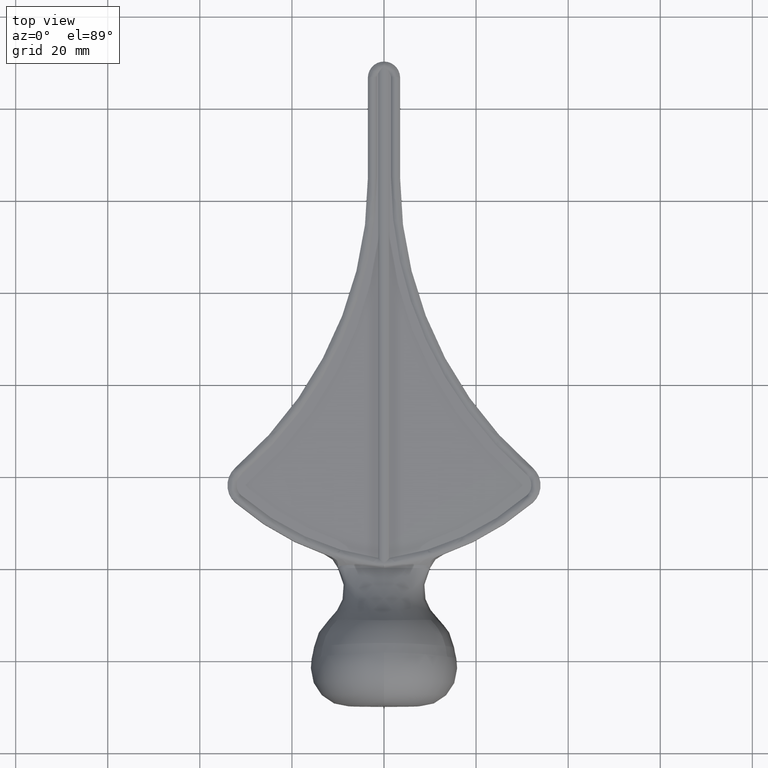
[diagram: clean part render]
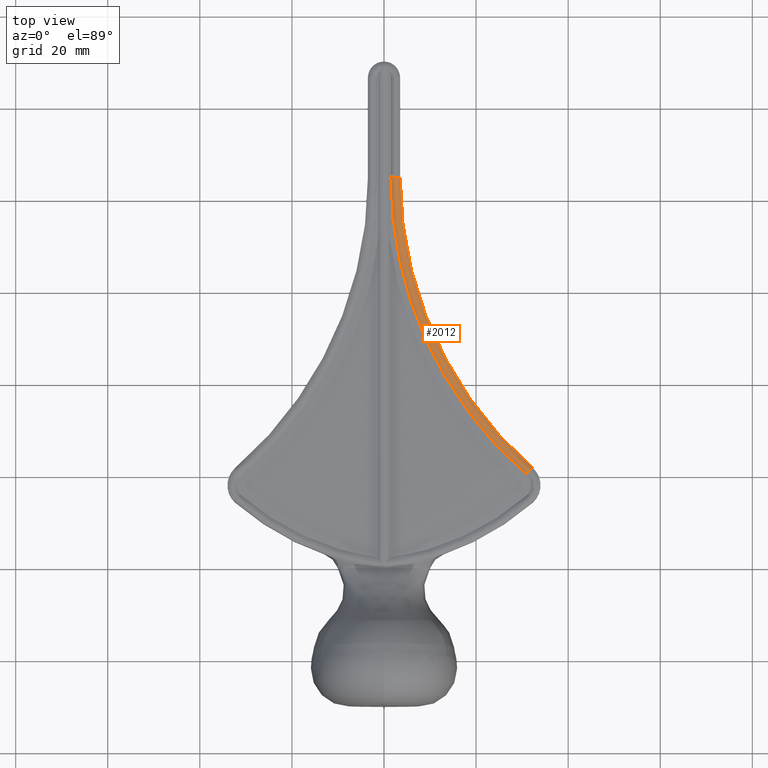
[diagram: same view with one face highlighted and labeled with its STEP entity id]
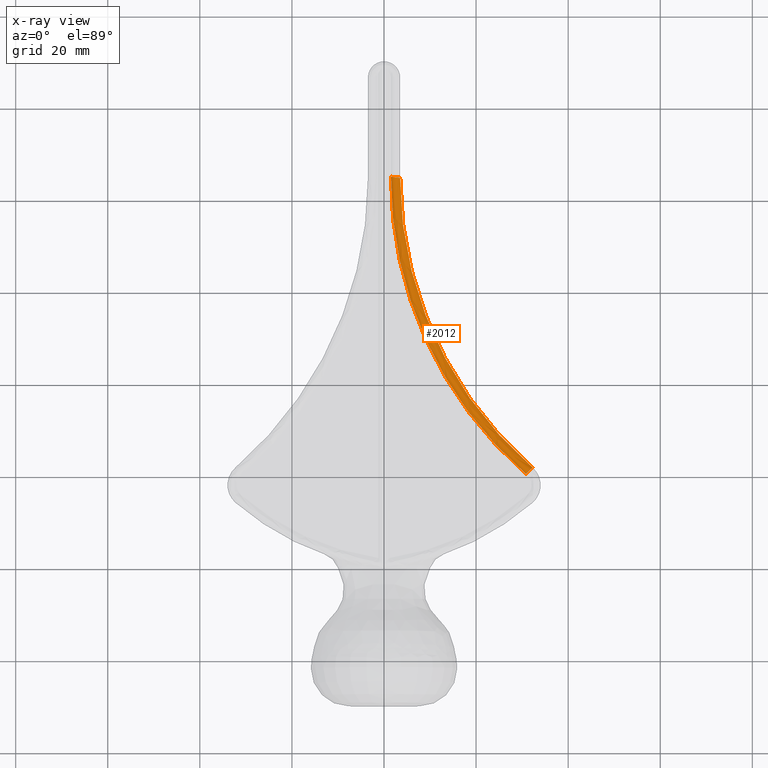
[diagram: x-ray of the same camera — body ghosted, the highlighted face saturated]
A machine part, top view. The second image highlights one B-rep face of the part: STEP entity #2012.
The next image is the same camera in x-ray: the body ghosted, the highlighted face saturated — about 0% of this face is hidden behind the body in this view.
In plain terms, the highlighted face is a freeform B-spline surface patch.
Its self-contained STEP definition (entity closure, byte-faithful):
#222 = AXIS2_PLACEMENT_3D ( 'NONE', #2079, #9886, #12593 ) ;
#538 = CARTESIAN_POINT ( 'NONE',  ( 2.055353140266432899, 84.89265330552451871, 3.477272727272726627 ) ) ;
#663 = CARTESIAN_POINT ( 'NONE',  ( 32.27163101364317299, 21.78106208763729512, 2.749999999999999112 ) ) ;
#1114 = DIRECTION ( 'NONE',  ( -0.000000000000000000, -0.000000000000000000, -1.000000000000000000 ) ) ;
#1640 =( BOUNDED_SURFACE ( )  B_SPLINE_SURFACE ( 3, 3, ( 
 ( #663, #11319, #5532, #9360 ),
 ( #10242, #3419, #4390, #8362 ),
 ( #3455, #4444, #3576, #538 ),
 ( #12304, #10286, #7392, #11238 ) ),
 .UNSPECIFIED., .F., .F., .T. ) 
 B_SPLINE_SURFACE_WITH_KNOTS ( ( 4, 4 ),
 ( 4, 4 ),
 ( 0.000000000000000000, 1.000000000000000000 ),
 ( 0.000000000000000000, 1.000000000000000000 ),
 .UNSPECIFIED. ) 
 GEOMETRIC_REPRESENTATION_ITEM ( )  RATIONAL_B_SPLINE_SURFACE ( (
 ( 1.000000000000000000, 0.9396567165627857099, 0.9396567165627857099, 1.000000000000000000),
 ( 0.7333333333333335036, 0.6890815921460430316, 0.6890815921460430316, 0.7333333333333335036),
 ( 0.7333333333333335036, 0.6890815921460430316, 0.6890815921460430316, 0.7333333333333335036),
 ( 1.000000000000000000, 0.9396567165627857099, 0.9396567165627857099, 1.000000000000000000) ) ) 
 REPRESENTATION_ITEM ( '' )  SURFACE ( )  );
#2003 = CIRCLE ( 'NONE', #3720, 85.22018175544718588 ) ;
#2012 = ADVANCED_FACE ( 'NONE', ( #4623 ), #1640, .F. ) ;
#2079 = CARTESIAN_POINT ( 'NONE',  ( 31.53368488866505004, 21.10620246028524249, 1.999999999999999112 ) ) ;
#2575 = ORIENTED_EDGE ( 'NONE', *, *, #3993, .F. ) ;
#3150 = AXIS2_PLACEMENT_3D ( 'NONE', #12178, #9600, #12426 ) ;
#3298 = DIRECTION ( 'NONE',  ( -0.6563907054926849671, -0.7544211302335156466, 0.000000000000000000 ) ) ;
#3356 = EDGE_LOOP ( 'NONE', ( #2575, #3631, #9132, #10530 ) ) ;
#3410 = CIRCLE ( 'NONE', #3150, 1.250000000000000222 ) ;
#3419 = CARTESIAN_POINT ( 'NONE',  ( 13.19534232348383540, 37.59554794625595520, 3.477272727272726183 ) ) ;
#3455 = CARTESIAN_POINT ( 'NONE',  ( 31.19825483185680781, 20.79944808421610958, 3.477272727272726627 ) ) ;
#3576 = CARTESIAN_POINT ( 'NONE',  ( 2.005386167699579225, 59.91630382209425676, 3.477272727272727515 ) ) ;
#3631 = ORIENTED_EDGE ( 'NONE', *, *, #12467, .F. ) ;
#3720 = AXIS2_PLACEMENT_3D ( 'NONE', #5590, #9146, #3298 ) ;
#3743 = EDGE_CURVE ( 'NONE', #5996, #5683, #9345, .T. ) ;
#3939 = CARTESIAN_POINT ( 'NONE',  ( 86.73347398835973365, 84.72324867158326356, 2.750000000000000000 ) ) ;
#3993 = EDGE_CURVE ( 'NONE', #7637, #10504, #2003, .T. ) ;
#4110 = CIRCLE ( 'NONE', #222, 1.250000000000000222 ) ;
#4387 = CARTESIAN_POINT ( 'NONE',  ( 3.500000000000031086, 84.72324867158327777, 2.750000000000000000 ) ) ;
#4390 = CARTESIAN_POINT ( 'NONE',  ( 2.939519812887341210, 60.07674327922642732, 3.477272727272726183 ) ) ;
#4444 = CARTESIAN_POINT ( 'NONE',  ( 12.34352390740293792, 37.17991364485379080, 3.477272727272727515 ) ) ;
#4623 = FACE_OUTER_BOUND ( 'NONE', #3356, .T. ) ;
#5198 = CARTESIAN_POINT ( 'NONE',  ( 30.79573876368691643, 20.43134283293316855, 2.750000000000000444 ) ) ;
#5532 = CARTESIAN_POINT ( 'NONE',  ( 3.500000000000004885, 60.17300695350572681, 2.749999999999998668 ) ) ;
#5590 = CARTESIAN_POINT ( 'NONE',  ( 86.73347398835973365, 84.72324867158326356, 2.750000000000000444 ) ) ;
#5683 = VERTEX_POINT ( 'NONE', #4387 ) ;
#5996 = VERTEX_POINT ( 'NONE', #8832 ) ;
#7392 = CARTESIAN_POINT ( 'NONE',  ( 1.444905980586922656, 59.82004014781495016, 2.750000000000000000 ) ) ;
#7637 = VERTEX_POINT ( 'NONE', #5198 ) ;
#8362 = CARTESIAN_POINT ( 'NONE',  ( 2.958257427599919609, 84.78677540931126089, 3.477272727272726183 ) ) ;
#8781 = DIRECTION ( 'NONE',  ( 1.000000000000000000, 0.000000000000000000, 0.000000000000000000 ) ) ;
#8832 = CARTESIAN_POINT ( 'NONE',  ( 32.27163101364321562, 21.78106208763728091, 2.750000000000000000 ) ) ;
#9132 = ORIENTED_EDGE ( 'NONE', *, *, #3743, .T. ) ;
#9146 = DIRECTION ( 'NONE',  ( -0.000000000000000000, -0.000000000000000000, -1.000000000000000000 ) ) ;
#9345 = CIRCLE ( 'NONE', #11253, 83.23347398835970523 ) ;
#9360 = CARTESIAN_POINT ( 'NONE',  ( 3.500000000000016875, 84.72324867158330619, 2.749999999999999112 ) ) ;
#9417 = CARTESIAN_POINT ( 'NONE',  ( 1.513610567866358947, 84.95618004325247341, 2.750000000000000444 ) ) ;
#9600 = DIRECTION ( 'NONE',  ( -0.1164656858345857193, -0.9931947160668342933, 0.000000000000000000 ) ) ;
#9883 = EDGE_CURVE ( 'NONE', #5683, #10504, #3410, .T. ) ;
#9886 = DIRECTION ( 'NONE',  ( 0.6748596273520660604, -0.7379461249781250620, 0.000000000000000000 ) ) ;
#10242 = CARTESIAN_POINT ( 'NONE',  ( 31.86911494547328516, 21.41295683635434699, 3.477272727272726183 ) ) ;
#10286 = CARTESIAN_POINT ( 'NONE',  ( 11.83243285775439624, 36.93053306401247937, 2.750000000000000000 ) ) ;
#10504 = VERTEX_POINT ( 'NONE', #9417 ) ;
#10530 = ORIENTED_EDGE ( 'NONE', *, *, #9883, .T. ) ;
#11238 = CARTESIAN_POINT ( 'NONE',  ( 1.513610567866342738, 84.95618004325247341, 2.750000000000000444 ) ) ;
#11253 = AXIS2_PLACEMENT_3D ( 'NONE', #3939, #1114, #8781 ) ;
#11319 = CARTESIAN_POINT ( 'NONE',  ( 13.70643337313236998, 37.84492852709727373, 2.749999999999998668 ) ) ;
#12178 = CARTESIAN_POINT ( 'NONE',  ( 2.506805283933193351, 84.83971435741786138, 1.999999999999999112 ) ) ;
#12304 = CARTESIAN_POINT ( 'NONE',  ( 30.79573876368691643, 20.43134283293316855, 2.750000000000000444 ) ) ;
#12426 = DIRECTION ( 'NONE',  ( 0.000000000000000000, 0.000000000000000000, 1.000000000000000000 ) ) ;
#12467 = EDGE_CURVE ( 'NONE', #5996, #7637, #4110, .T. ) ;
#12593 = DIRECTION ( 'NONE',  ( 0.000000000000000000, 0.000000000000000000, 1.000000000000000000 ) ) ;